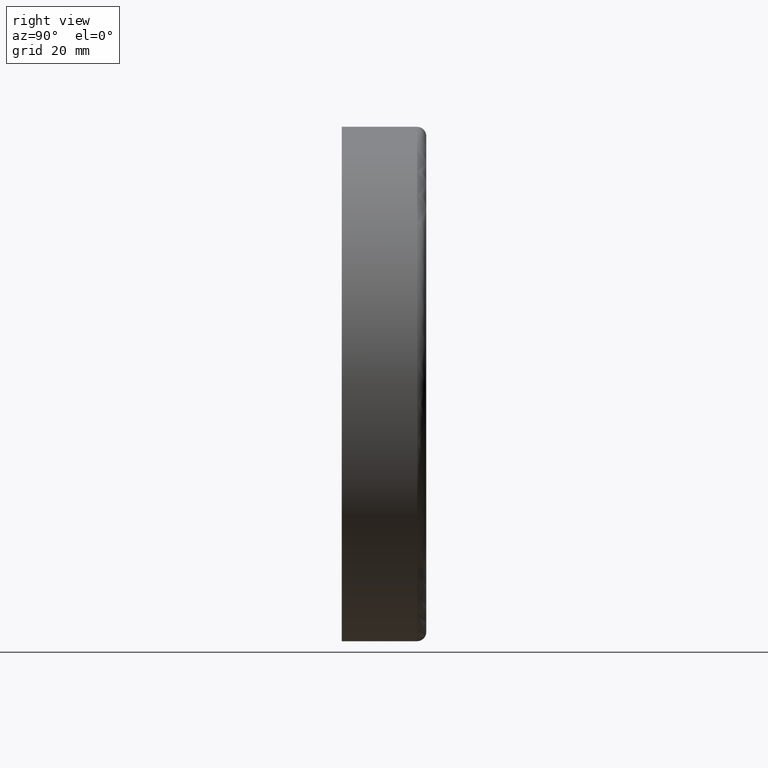
[diagram: clean part render]
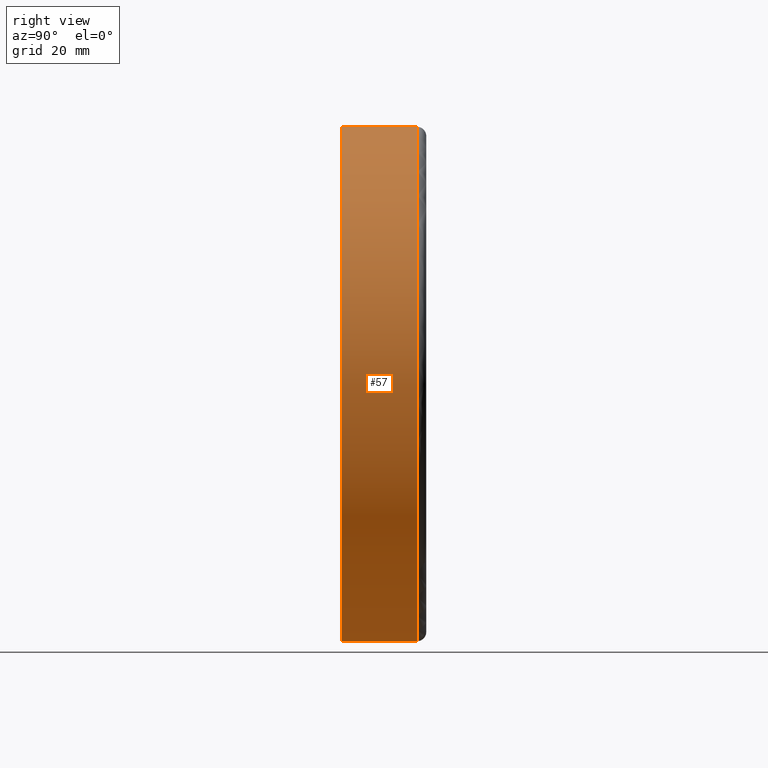
[diagram: same view with one face highlighted and labeled with its STEP entity id]
A machine part, right view. The second image highlights one B-rep face of the part: STEP entity #57.
In plain terms, the highlighted cylindrical surface (partial cylindrical patch) has radius 56 mm, axis along (-0, -1, -0).
Its self-contained STEP definition (entity closure, byte-faithful):
#1 = DIRECTION ( 'NONE',  ( 0.0000000000000000000, 0.0000000000000000000, 1.000000000000000000 ) ) ;
#5 = ORIENTED_EDGE ( 'NONE', *, *, #18, .F. ) ;
#15 = VERTEX_POINT ( 'NONE', #282 ) ;
#18 = EDGE_CURVE ( 'NONE', #182, #15, #235, .T. ) ;
#20 = VERTEX_POINT ( 'NONE', #274 ) ;
#25 = CIRCLE ( 'NONE', #267, 56.00000000000000700 ) ;
#39 = VECTOR ( 'NONE', #89, 1000.000000000000000 ) ;
#41 = DIRECTION ( 'NONE',  ( -0.0000000000000000000, -1.000000000000000000, -0.0000000000000000000 ) ) ;
#53 = FACE_OUTER_BOUND ( 'NONE', #240, .T. ) ;
#57 = ADVANCED_FACE ( 'NONE', ( #53 ), #191, .T. ) ;
#85 = CARTESIAN_POINT ( 'NONE',  ( 0.0000000000000000000, 18.39999999999999900, 0.0000000000000000000 ) ) ;
#89 = DIRECTION ( 'NONE',  ( -0.0000000000000000000, -1.000000000000000000, -0.0000000000000000000 ) ) ;
#91 = CARTESIAN_POINT ( 'NONE',  ( 0.0000000000000000000, 16.39999999999999900, -56.00000000000000700 ) ) ;
#105 = EDGE_CURVE ( 'NONE', #20, #248, #351, .T. ) ;
#122 = CARTESIAN_POINT ( 'NONE',  ( 6.858022075225179300E-015, 18.39999999999999900, 56.00000000000000700 ) ) ;
#128 = CARTESIAN_POINT ( 'NONE',  ( 0.0000000000000000000, 16.39999999999999900, 0.0000000000000000000 ) ) ;
#152 = CARTESIAN_POINT ( 'NONE',  ( 6.858022075225179300E-015, 0.0000000000000000000, 56.00000000000000700 ) ) ;
#169 = EDGE_CURVE ( 'NONE', #182, #20, #25, .T. ) ;
#179 = CARTESIAN_POINT ( 'NONE',  ( 0.0000000000000000000, 18.39999999999999900, -56.00000000000000700 ) ) ;
#182 = VERTEX_POINT ( 'NONE', #91 ) ;
#190 = DIRECTION ( 'NONE',  ( -0.0000000000000000000, -1.000000000000000000, -0.0000000000000000000 ) ) ;
#191 = CYLINDRICAL_SURFACE ( 'NONE', #228, 56.00000000000000700 ) ;
#222 = AXIS2_PLACEMENT_3D ( 'NONE', #393, #350, #1 ) ;
#228 = AXIS2_PLACEMENT_3D ( 'NONE', #85, #314, #336 ) ;
#235 = LINE ( 'NONE', #179, #39 ) ;
#240 = EDGE_LOOP ( 'NONE', ( #279, #389, #264, #5 ) ) ;
#248 = VERTEX_POINT ( 'NONE', #152 ) ;
#264 = ORIENTED_EDGE ( 'NONE', *, *, #294, .T. ) ;
#267 = AXIS2_PLACEMENT_3D ( 'NONE', #128, #190, #317 ) ;
#268 = VECTOR ( 'NONE', #41, 1000.000000000000000 ) ;
#274 = CARTESIAN_POINT ( 'NONE',  ( 6.858022075225179300E-015, 16.39999999999999900, 56.00000000000000700 ) ) ;
#279 = ORIENTED_EDGE ( 'NONE', *, *, #169, .T. ) ;
#282 = CARTESIAN_POINT ( 'NONE',  ( 0.0000000000000000000, 0.0000000000000000000, -56.00000000000000700 ) ) ;
#294 = EDGE_CURVE ( 'NONE', #248, #15, #386, .T. ) ;
#314 = DIRECTION ( 'NONE',  ( -0.0000000000000000000, -1.000000000000000000, -0.0000000000000000000 ) ) ;
#317 = DIRECTION ( 'NONE',  ( 0.0000000000000000000, 0.0000000000000000000, 1.000000000000000000 ) ) ;
#336 = DIRECTION ( 'NONE',  ( 0.0000000000000000000, 0.0000000000000000000, -1.000000000000000000 ) ) ;
#350 = DIRECTION ( 'NONE',  ( 0.0000000000000000000, 1.000000000000000000, 0.0000000000000000000 ) ) ;
#351 = LINE ( 'NONE', #122, #268 ) ;
#386 = CIRCLE ( 'NONE', #222, 56.00000000000000700 ) ;
#389 = ORIENTED_EDGE ( 'NONE', *, *, #105, .T. ) ;
#393 = CARTESIAN_POINT ( 'NONE',  ( 0.0000000000000000000, 0.0000000000000000000, 0.0000000000000000000 ) ) ;